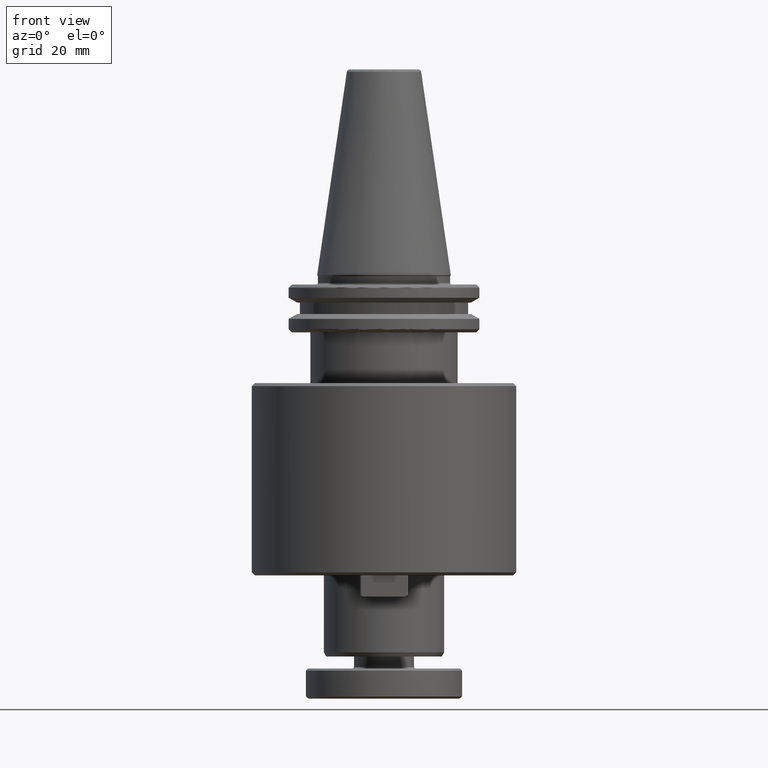
[diagram: clean part render]
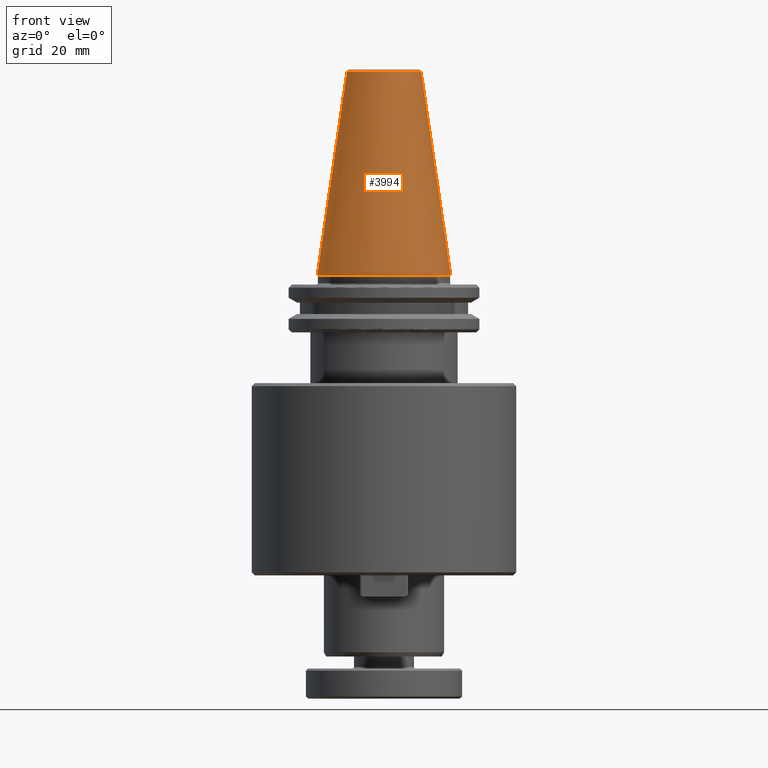
[diagram: same view with one face highlighted and labeled with its STEP entity id]
A machine part, front view. The second image highlights one B-rep face of the part: STEP entity #3994.
In plain terms, the highlighted conical surface has half-angle 8.297 deg.
Its self-contained STEP definition (entity closure, byte-faithful):
#58 = VERTEX_POINT ( 'NONE', #902 ) ;
#88 = DIRECTION ( 'NONE',  ( 1.000000000000000000, 0.0000000000000000000, 9.822541477422708000E-017 ) ) ;
#178 = AXIS2_PLACEMENT_3D ( 'NONE', #1273, #1822, #88 ) ;
#437 = VERTEX_POINT ( 'NONE', #3558 ) ;
#902 = CARTESIAN_POINT ( 'NONE',  ( 22.22500000000000100, 2.721777511104992800E-015, 0.0000000000000000000 ) ) ;
#1069 = LINE ( 'NONE', #2989, #3595 ) ;
#1273 = CARTESIAN_POINT ( 'NONE',  ( 0.0000000000000000000, 0.0000000000000000000, 0.0000000000000000000 ) ) ;
#1376 = CARTESIAN_POINT ( 'NONE',  ( 0.0000000000000000000, 0.0000000000000000000, 0.0000000000000000000 ) ) ;
#1442 = CIRCLE ( 'NONE', #178, 22.22500000000000500 ) ;
#1506 = LINE ( 'NONE', #3652, #2810 ) ;
#1530 = AXIS2_PLACEMENT_3D ( 'NONE', #1376, #3993, #3334 ) ;
#1815 = CARTESIAN_POINT ( 'NONE',  ( 0.0000000000000000000, 0.0000000000000000000, 67.54430822726729400 ) ) ;
#1822 = DIRECTION ( 'NONE',  ( -0.0000000000000000000, -0.0000000000000000000, -1.000000000000000000 ) ) ;
#1827 = CARTESIAN_POINT ( 'NONE',  ( 12.37469537611110800, 2.118620309691397300E-015, 67.54430822726729400 ) ) ;
#2067 = ORIENTED_EDGE ( 'NONE', *, *, #2377, .F. ) ;
#2139 = DIRECTION ( 'NONE',  ( -1.000000000000000000, 0.0000000000000000000, 0.0000000000000000000 ) ) ;
#2194 = CONICAL_SURFACE ( 'NONE', #1530, 22.22500000000000100, 0.1448138465474190500 ) ;
#2377 = EDGE_CURVE ( 'NONE', #58, #437, #1442, .T. ) ;
#2506 = VERTEX_POINT ( 'NONE', #1827 ) ;
#2694 = CARTESIAN_POINT ( 'NONE',  ( -12.37469537611110800, 0.0000000000000000000, 67.54430822726729400 ) ) ;
#2763 = FACE_OUTER_BOUND ( 'NONE', #3209, .T. ) ;
#2771 = EDGE_CURVE ( 'NONE', #2506, #58, #1069, .T. ) ;
#2810 = VECTOR ( 'NONE', #3976, 1000.000000000000000 ) ;
#2883 = VERTEX_POINT ( 'NONE', #2694 ) ;
#2951 = EDGE_CURVE ( 'NONE', #2883, #437, #1506, .T. ) ;
#2989 = CARTESIAN_POINT ( 'NONE',  ( 22.22500000000000100, 2.721777511104992800E-015, 0.0000000000000000000 ) ) ;
#3072 = EDGE_CURVE ( 'NONE', #2506, #2883, #3360, .T. ) ;
#3209 = EDGE_LOOP ( 'NONE', ( #4065, #3359, #3722, #2067 ) ) ;
#3334 = DIRECTION ( 'NONE',  ( -1.000000000000000000, 0.0000000000000000000, 0.0000000000000000000 ) ) ;
#3359 = ORIENTED_EDGE ( 'NONE', *, *, #3072, .T. ) ;
#3360 = CIRCLE ( 'NONE', #3584, 12.37469537611110800 ) ;
#3558 = CARTESIAN_POINT ( 'NONE',  ( -22.22500000000000100, 0.0000000000000000000, 0.0000000000000000000 ) ) ;
#3584 = AXIS2_PLACEMENT_3D ( 'NONE', #1815, #4060, #2139 ) ;
#3595 = VECTOR ( 'NONE', #4285, 1000.000000000000000 ) ;
#3652 = CARTESIAN_POINT ( 'NONE',  ( -22.22500000000000100, 0.0000000000000000000, 0.0000000000000000000 ) ) ;
#3722 = ORIENTED_EDGE ( 'NONE', *, *, #2951, .T. ) ;
#3976 = DIRECTION ( 'NONE',  ( -0.1443082272673070500, 0.0000000000000000000, -0.9895327864921743500 ) ) ;
#3993 = DIRECTION ( 'NONE',  ( 0.0000000000000000000, 0.0000000000000000000, -1.000000000000000000 ) ) ;
#3994 = ADVANCED_FACE ( 'NONE', ( #2763 ), #2194, .T. ) ;
#4060 = DIRECTION ( 'NONE',  ( 0.0000000000000000000, 0.0000000000000000000, -1.000000000000000000 ) ) ;
#4065 = ORIENTED_EDGE ( 'NONE', *, *, #2771, .F. ) ;
#4285 = DIRECTION ( 'NONE',  ( 0.1443082272673070500, 1.767266086135363700E-017, -0.9895327864921743500 ) ) ;